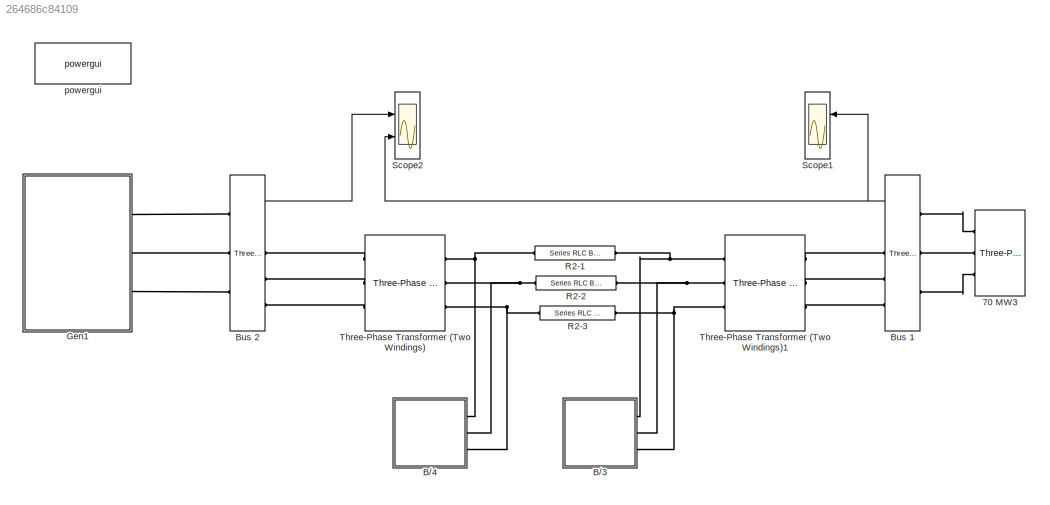
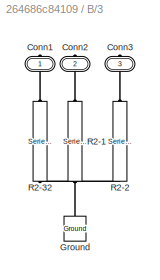
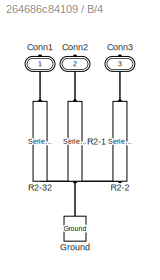
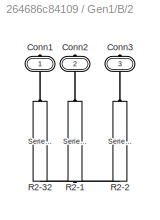
MODEL slx_264686c84109
KIND model
CONFIG AbsTol = auto
CONFIG FixedStep = auto
CONFIG MaxStep = auto
CONFIG MinStep = auto
CONFIG RelTol = 1e-3
CONFIG SampleTimeConstraint = Unconstrained
CONFIG Solver = VariableStepAuto
CONFIG SolverMode = Auto
CONFIG SolverName = VariableStepAuto
CONFIG StartTime = 0.0
CONFIG StopTime = 10.0
BLOCK [Reference] 70 MW3  REF=powerlib/Elements/Three-Phase
Parallel RLC Load
  AttributesFormatString = \n
  Ports = [0, 0, 0, 0, 0, 3]
  SourceBlock = powerlib/Elements/Three-Phase\nParallel RLC Load
  SourceType = Three-Phase Parallel RLC Load
BLOCK [SubSystem] B//3
  Ports = [0, 0, 0, 0, 0, 0, 3]
  RequestExecContextInheritance = off
  Variant = off
BLOCK [PMIOPort] B//3/Conn1
  Port = 1
  Side = Right
BLOCK [PMIOPort] B//3/Conn2
  Port = 2
  Side = Right
BLOCK [PMIOPort] B//3/Conn3
  Port = 3
  Side = Right
BLOCK [Reference] B//3/Ground  REF=powerlib/Elements/Ground
  Ports = [0, 0, 0, 0, 0, 1]
  SourceBlock = powerlib/Elements/Ground
  SourceType = Ground
BLOCK [Reference] B//3/R2-1  REF=powerlib/Elements/Series RLC Branch
  Ports = [0, 0, 0, 0, 0, 1, 1]
  SourceBlock = powerlib/Elements/Series RLC Branch
  SourceType = Series RLC Branch
BLOCK [Reference] B//3/R2-2  REF=powerlib/Elements/Series RLC Branch
  Ports = [0, 0, 0, 0, 0, 1, 1]
  SourceBlock = powerlib/Elements/Series RLC Branch
  SourceType = Series RLC Branch
BLOCK [Reference] B//3/R2-32  REF=powerlib/Elements/Series RLC Branch
  Ports = [0, 0, 0, 0, 0, 1, 1]
  SourceBlock = powerlib/Elements/Series RLC Branch
  SourceType = Series RLC Branch
BLOCK [SubSystem] B//4
  Ports = [0, 0, 0, 0, 0, 0, 3]
  RequestExecContextInheritance = off
  Variant = off
BLOCK [PMIOPort] B//4/Conn1
  Port = 1
  Side = Right
BLOCK [PMIOPort] B//4/Conn2
  Port = 2
  Side = Right
BLOCK [PMIOPort] B//4/Conn3
  Port = 3
  Side = Right
BLOCK [Reference] B//4/Ground  REF=powerlib/Elements/Ground
  Ports = [0, 0, 0, 0, 0, 1]
  SourceBlock = powerlib/Elements/Ground
  SourceType = Ground
BLOCK [Reference] B//4/R2-1  REF=powerlib/Elements/Series RLC Branch
  Ports = [0, 0, 0, 0, 0, 1, 1]
  SourceBlock = powerlib/Elements/Series RLC Branch
  SourceType = Series RLC Branch
BLOCK [Reference] B//4/R2-2  REF=powerlib/Elements/Series RLC Branch
  Ports = [0, 0, 0, 0, 0, 1, 1]
  SourceBlock = powerlib/Elements/Series RLC Branch
  SourceType = Series RLC Branch
BLOCK [Reference] B//4/R2-32  REF=powerlib/Elements/Series RLC Branch
  Ports = [0, 0, 0, 0, 0, 1, 1]
  SourceBlock = powerlib/Elements/Series RLC Branch
  SourceType = Series RLC Branch
BLOCK [Reference] Bus 1  REF=powerlib/Measurements/Three-Phase
V-I Measurement
  Ports = [0, 2, 0, 0, 0, 3, 3]
  SourceBlock = powerlib/Measurements/Three-Phase\nV-I Measurement
  SourceType = Three-Phase VI Measurement
BLOCK [Reference] Bus 2  REF=powerlib/Measurements/Three-Phase
V-I Measurement
  Ports = [0, 2, 0, 0, 0, 3, 3]
  SourceBlock = powerlib/Measurements/Three-Phase\nV-I Measurement
  SourceType = Three-Phase VI Measurement
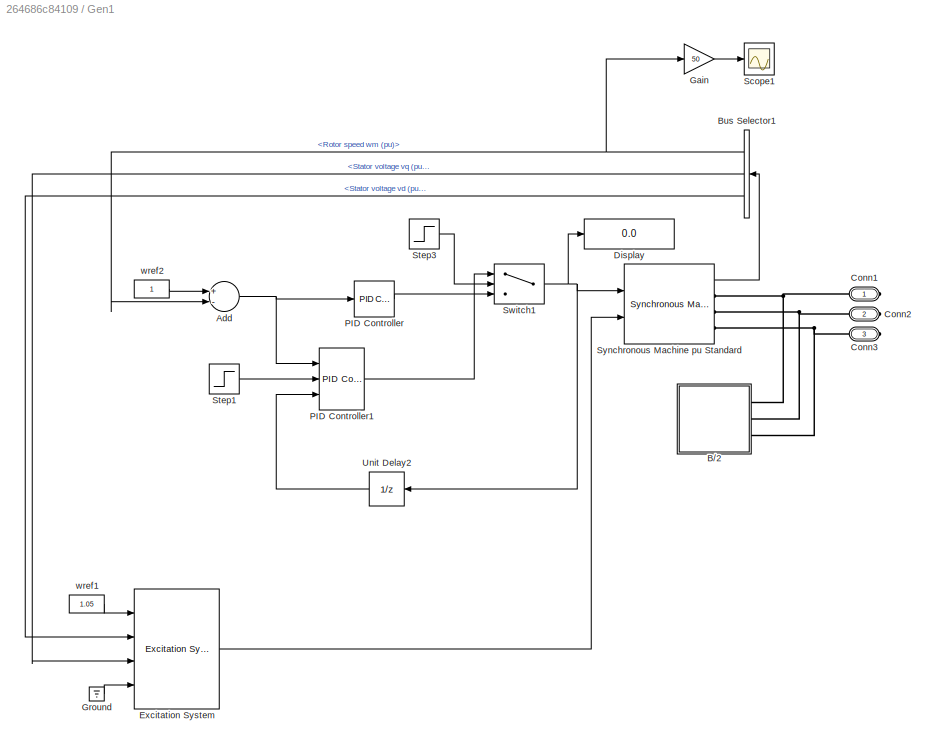
BLOCK [SubSystem] Gen1
  Ports = [0, 0, 0, 0, 0, 0, 3]
  RequestExecContextInheritance = off
  Variant = off
BLOCK [Sum] Gen1/Add
  InputSameDT = off
  Inputs = +-
  OutDataTypeStr = Inherit: Inherit via internal rule
  Ports = [2, 1]
  SaturateOnIntegerOverflow = off
BLOCK [SubSystem] Gen1/B//2
  Ports = [0, 0, 0, 0, 0, 0, 3]
  RequestExecContextInheritance = off
  Variant = off
BLOCK [PMIOPort] Gen1/B//2/Conn1
  Port = 1
  Side = Right
BLOCK [PMIOPort] Gen1/B//2/Conn2
  Port = 2
  Side = Right
BLOCK [PMIOPort] Gen1/B//2/Conn3
  Port = 3
  Side = Right
BLOCK [Reference] Gen1/B//2/R2-1  REF=powerlib/Elements/Series RLC Branch
  Ports = [0, 0, 0, 0, 0, 1, 1]
  SourceBlock = powerlib/Elements/Series RLC Branch
  SourceType = Series RLC Branch
BLOCK [Reference] Gen1/B//2/R2-2  REF=powerlib/Elements/Series RLC Branch
  Ports = [0, 0, 0, 0, 0, 1, 1]
  SourceBlock = powerlib/Elements/Series RLC Branch
  SourceType = Series RLC Branch
BLOCK [Reference] Gen1/B//2/R2-32  REF=powerlib/Elements/Series RLC Branch
  Ports = [0, 0, 0, 0, 0, 1, 1]
  SourceBlock = powerlib/Elements/Series RLC Branch
  SourceType = Series RLC Branch
BLOCK [BusSelector] Gen1/Bus Selector1
  OutputSignals = Mechanical.Rotor speed  wm  (pu),dq0 components.Stator voltage  vq (pu),dq0 components.Stator voltage  vd (pu)
  Ports = [1, 3]
BLOCK [PMIOPort] Gen1/Conn1
  Port = 1
  Side = Right
BLOCK [PMIOPort] Gen1/Conn2
  Port = 2
  Side = Right
BLOCK [PMIOPort] Gen1/Conn3
  Port = 3
  Side = Right
BLOCK [Display] Gen1/Display
  Decimation = 1
  Ports = [1]
BLOCK [Reference] Gen1/Excitation System  REF=sps_avr/Excitation System
  Ports = [4, 1]
  SourceBlock = sps_avr/Excitation System
  SourceType = Excitation System
BLOCK [Gain] Gen1/Gain
  Gain = 50
  OutDataTypeStr = Inherit: Inherit via internal rule
  ParamDataTypeStr = Inherit: Inherit via internal rule
  SaturateOnIntegerOverflow = off
BLOCK [Ground] Gen1/Ground
BLOCK [Reference] Gen1/PID Controller  REF=simulink/Continuous/PID Controller
  Ports = [1, 1]
  SourceBlock = simulink/Continuous/PID Controller
  SourceType = PID 1dof
BLOCK [Reference] Gen1/PID Controller1  REF=simulink/Continuous/PID Controller
  Ports = [3, 1]
  SourceBlock = simulink/Continuous/PID Controller
  SourceType = PID 1dof
BLOCK [Scope] Gen1/Scope1
  Ports = [1]
  ScopeSpecificationString = Simulink.scopes.TimeScopeBlockCfg('CurrentConfiguration', extmgr.ConfigurationSet(extmgr.Configuration('Core','General UI',true),extmgr.Configuration('Core','Source UI',true),extmgr.Configuration('Sources','WiredSimulink',true,'DataLoggingVariableName','ScopeData1'),extmgr.Configuration('Visuals','Time Domain',true,'SerializedDisplays',{struct('MinYLimReal','49.84458','MaxYLimReal','50.25922','YLa...<+1440ch>
BLOCK [Step] Gen1/Step1
  Time = 5
BLOCK [Step] Gen1/Step3
  Time = 5
BLOCK [Switch] Gen1/Switch1
  Criteria = u2 > Threshold
  InputSameDT = off
  SaturateOnIntegerOverflow = off
  Threshold = 0.5
BLOCK [Reference] Gen1/Synchronous Machine pu Standard  REF=powerlib/Machines/Synchronous Machine
pu Standard
  Ports = [2, 1, 0, 0, 0, 0, 3]
  SourceBlock = powerlib/Machines/Synchronous Machine\npu Standard
  SourceType = Synchronous Machine
BLOCK [UnitDelay] Gen1/Unit Delay2
  InputProcessing = Elements as channels (sample based)
  SampleTime = Ts
BLOCK [Constant] Gen1/wref1
  Value = 1.05
BLOCK [Constant] Gen1/wref2
BLOCK [Reference] R2-1  REF=powerlib/Elements/Series RLC Branch
  Ports = [0, 0, 0, 0, 0, 1, 1]
  SourceBlock = powerlib/Elements/Series RLC Branch
  SourceType = Series RLC Branch
BLOCK [Reference] R2-2  REF=powerlib/Elements/Series RLC Branch
  Ports = [0, 0, 0, 0, 0, 1, 1]
  SourceBlock = powerlib/Elements/Series RLC Branch
  SourceType = Series RLC Branch
BLOCK [Reference] R2-3  REF=powerlib/Elements/Series RLC Branch
  Ports = [0, 0, 0, 0, 0, 1, 1]
  SourceBlock = powerlib/Elements/Series RLC Branch
  SourceType = Series RLC Branch
BLOCK [Scope] Scope1
  NumInputPorts = 2
  Ports = [2]
  ScopeSpecificationString = Simulink.scopes.TimeScopeBlockCfg('CurrentConfiguration', extmgr.ConfigurationSet(extmgr.Configuration('Core','General UI',true),extmgr.Configuration('Core','Source UI',true),extmgr.Configuration('Sources','WiredSimulink',true,'DataLoggingVariableName','ScopeData2'),extmgr.Configuration('Visuals','Time Domain',true,'SerializedDisplays',{struct('MinYLimReal','-672.48855','MaxYLimReal','626.48883','...<+1504ch>
BLOCK [Scope] Scope2
  NumInputPorts = 2
  Ports = [2]
  ScopeSpecificationString = Simulink.scopes.TimeScopeBlockCfg('CurrentConfiguration', extmgr.ConfigurationSet(extmgr.Configuration('Core','General UI',true),extmgr.Configuration('Core','Source UI',true),extmgr.Configuration('Sources','WiredSimulink',true,'DataLoggingVariableName','ScopeData1'),extmgr.Configuration('Visuals','Time Domain',true,'SerializedDisplays',{struct('MinYLimReal','-792.91435','MaxYLimReal','656.63281','...<+1569ch>
BLOCK [Reference] Three-Phase Transformer (Two Windings)  REF=powerlib/Elements/Three-Phase
Transformer
(Two Windings)
  Ports = [0, 0, 0, 0, 0, 3, 3]
  SourceBlock = powerlib/Elements/Three-Phase\nTransformer\n(Two Windings)
  SourceType = Three-Phase Transformer (Two Windings)
BLOCK [Reference] Three-Phase Transformer (Two Windings)1  REF=powerlib/Elements/Three-Phase
Transformer
(Two Windings)
  Ports = [0, 0, 0, 0, 0, 3, 3]
  SourceBlock = powerlib/Elements/Three-Phase\nTransformer\n(Two Windings)
  SourceType = Three-Phase Transformer (Two Windings)
BLOCK [Reference] powergui  REF=powerlib/powergui
  Ports = []
  Priority = 2
  SourceBlock = powerlib/powergui
  SourceType = PSB option menu block
NET Bus 1:1 -> Scope1:1, Scope2:2
LINE Bus 2:1 -> Scope2:1
NET Gen1/Add:1 -> Gen1/PID Controller1:1, Gen1/PID Controller:1
NET Gen1/Bus Selector1:1 -> Gen1/Add:2, Gen1/Gain:1
LINE Gen1/Bus Selector1:2 -> Gen1/Excitation System:3
LINE Gen1/Bus Selector1:3 -> Gen1/Excitation System:2
LINE Gen1/Excitation System:1 -> Gen1/Synchronous Machine pu Standard:2
LINE Gen1/Gain:1 -> Gen1/Scope1:1
LINE Gen1/Ground:1 -> Gen1/Excitation System:4
LINE Gen1/PID Controller1:1 -> Gen1/Switch1:1
LINE Gen1/PID Controller:1 -> Gen1/Switch1:3
LINE Gen1/Step1:1 -> Gen1/PID Controller1:2
LINE Gen1/Step3:1 -> Gen1/Switch1:2
NET Gen1/Switch1:1 -> Gen1/Display:1, Gen1/Synchronous Machine pu Standard:1, Gen1/Unit Delay2:1
LINE Gen1/Synchronous Machine pu Standard:1 -> Gen1/Bus Selector1:1
LINE Gen1/Unit Delay2:1 -> Gen1/PID Controller1:3
LINE Gen1/wref1:1 -> Gen1/Excitation System:1
LINE Gen1/wref2:1 -> Gen1/Add:1
PLINE 70 MW3:LConn1 -- Bus 1:LConn1
PLINE 70 MW3:LConn2 -- Bus 1:LConn2
PLINE 70 MW3:LConn3 -- Bus 1:LConn3
PLINE B//3/Conn1:RConn1 -- B//3/R2-32:LConn1
PLINE B//3/Conn2:RConn1 -- B//3/R2-1:LConn1
PLINE B//3/Conn3:RConn1 -- B//3/R2-2:LConn1
PNET net1: B//3/Ground:LConn1 -- B//3/R2-1:RConn1 -- B//3/R2-2:RConn1 -- B//3/R2-32:RConn1
PNET net2: B//3:RConn1 -- R2-1:LConn1 -- Three-Phase Transformer (Two Windings)1:RConn1
PNET net3: B//3:RConn2 -- R2-2:LConn1 -- Three-Phase Transformer (Two Windings)1:RConn2
PNET net4: B//3:RConn3 -- R2-3:LConn1 -- Three-Phase Transformer (Two Windings)1:RConn3
PLINE B//4/Conn1:RConn1 -- B//4/R2-32:LConn1
PLINE B//4/Conn2:RConn1 -- B//4/R2-1:LConn1
PLINE B//4/Conn3:RConn1 -- B//4/R2-2:LConn1
PNET net5: B//4/Ground:LConn1 -- B//4/R2-1:RConn1 -- B//4/R2-2:RConn1 -- B//4/R2-32:RConn1
PNET net6: B//4:RConn1 -- R2-1:RConn1 -- Three-Phase Transformer (Two Windings):RConn1
PNET net7: B//4:RConn2 -- R2-2:RConn1 -- Three-Phase Transformer (Two Windings):RConn2
PNET net8: B//4:RConn3 -- R2-3:RConn1 -- Three-Phase Transformer (Two Windings):RConn3
PLINE Bus 1:RConn1 -- Three-Phase Transformer (Two Windings)1:LConn1
PLINE Bus 1:RConn2 -- Three-Phase Transformer (Two Windings)1:LConn2
PLINE Bus 1:RConn3 -- Three-Phase Transformer (Two Windings)1:LConn3
PLINE Bus 2:LConn1 -- Gen1:RConn1
PLINE Bus 2:LConn2 -- Gen1:RConn2
PLINE Bus 2:LConn3 -- Gen1:RConn3
PLINE Bus 2:RConn1 -- Three-Phase Transformer (Two Windings):LConn1
PLINE Bus 2:RConn2 -- Three-Phase Transformer (Two Windings):LConn2
PLINE Bus 2:RConn3 -- Three-Phase Transformer (Two Windings):LConn3
PLINE Gen1/B//2/Conn1:RConn1 -- Gen1/B//2/R2-32:LConn1
PLINE Gen1/B//2/Conn2:RConn1 -- Gen1/B//2/R2-1:LConn1
PLINE Gen1/B//2/Conn3:RConn1 -- Gen1/B//2/R2-2:LConn1
PNET net9: Gen1/B//2/R2-1:RConn1 -- Gen1/B//2/R2-2:RConn1 -- Gen1/B//2/R2-32:RConn1
PNET net10: Gen1/B//2:RConn1 -- Gen1/Conn1:RConn1 -- Gen1/Synchronous Machine pu Standard:RConn1
PNET net11: Gen1/B//2:RConn2 -- Gen1/Conn2:RConn1 -- Gen1/Synchronous Machine pu Standard:RConn2
PNET net12: Gen1/B//2:RConn3 -- Gen1/Conn3:RConn1 -- Gen1/Synchronous Machine pu Standard:RConn3
note: NET lines group one-source signal fan-out (src -> all destinations, sorted); 1:1 wires keep LINE; PNET lines group multi-terminal physical nets as a canonical sorted terminal list (undirected conserving connections); 2-terminal nets keep the pairwise PLINE form
